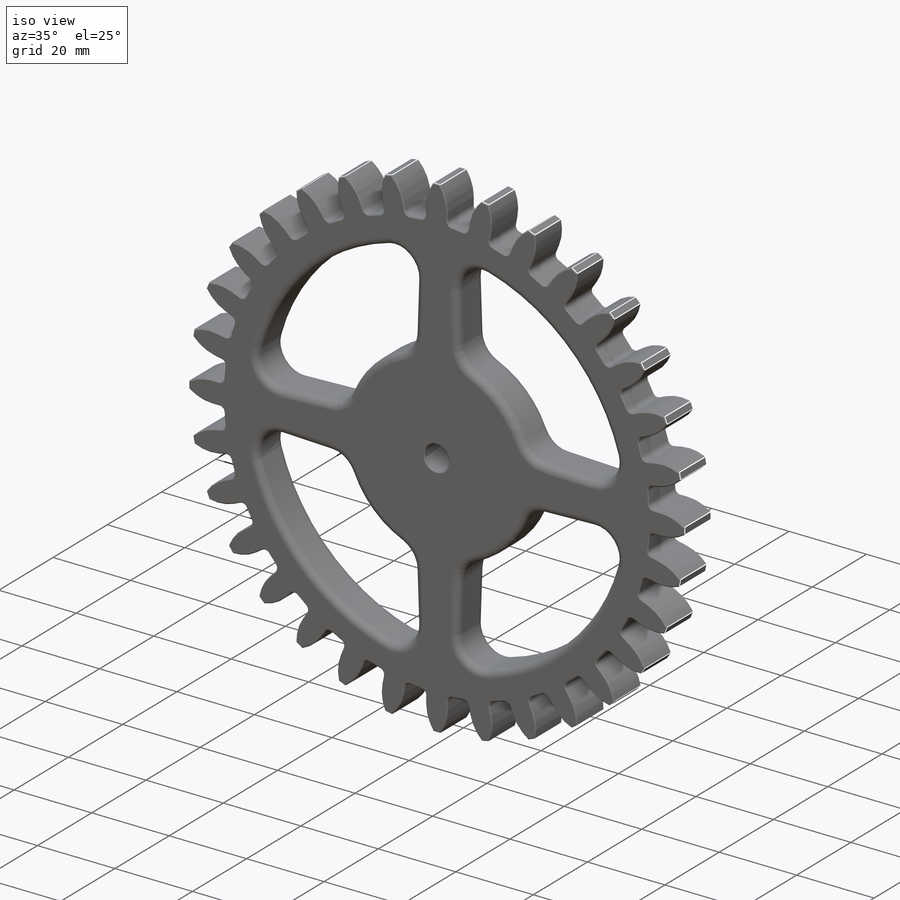
[diagram: iso view]
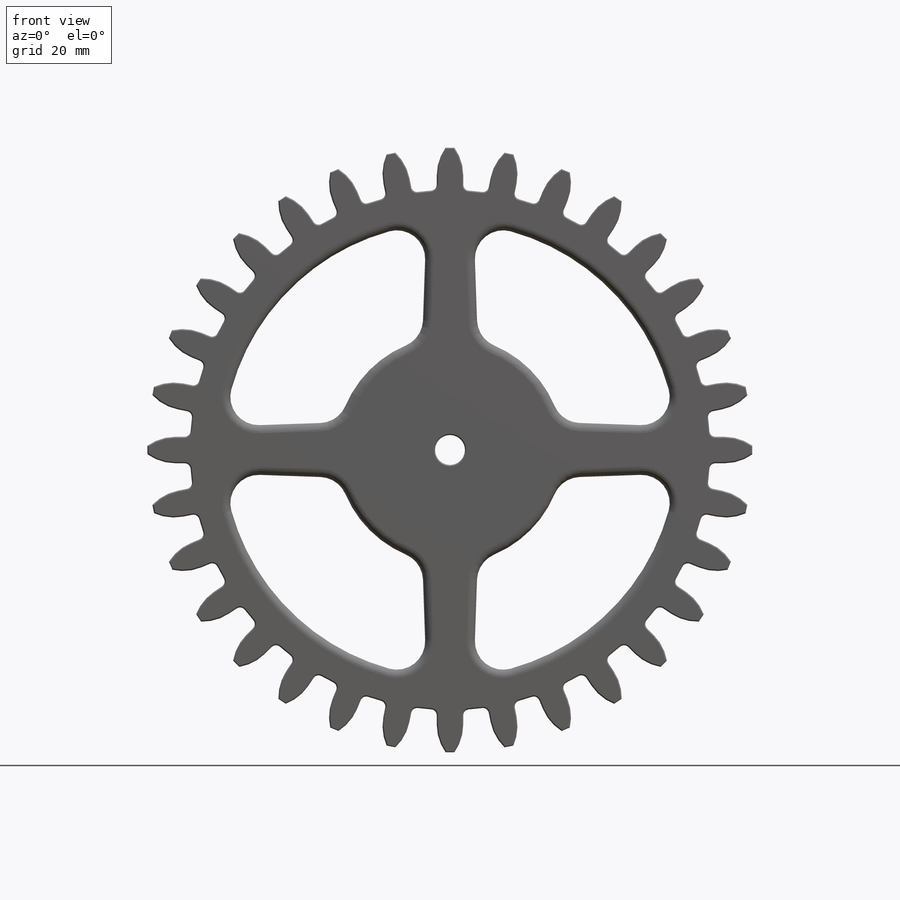
[diagram: front view]
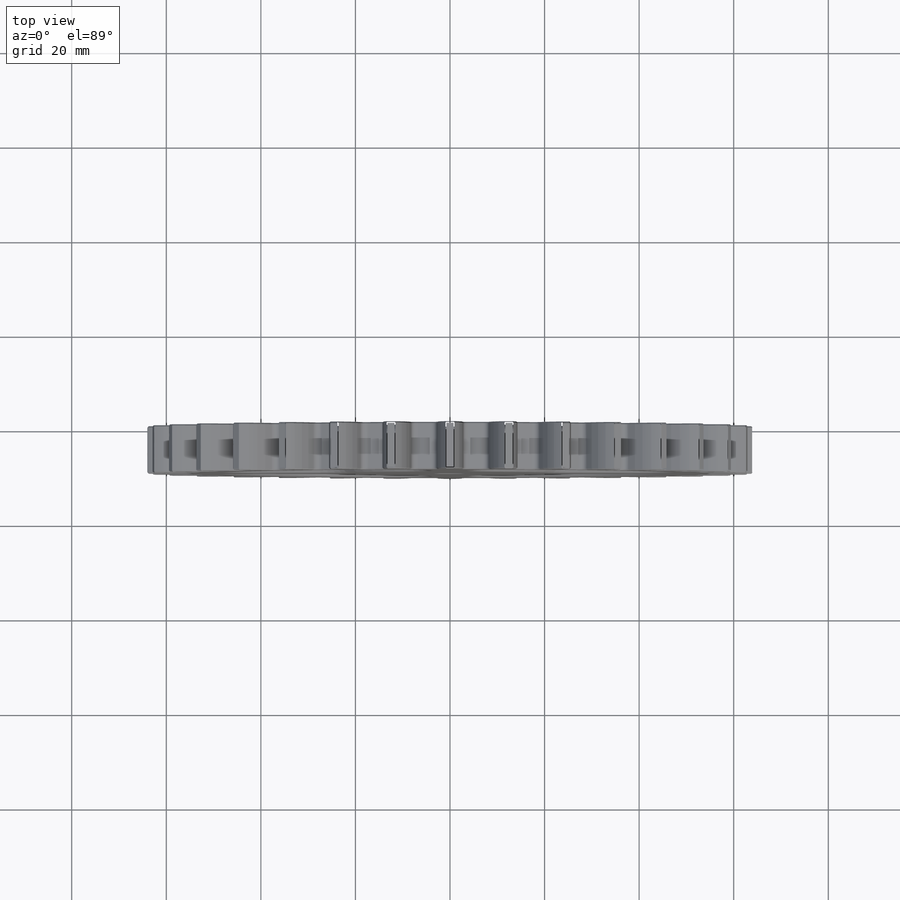
[diagram: top view]
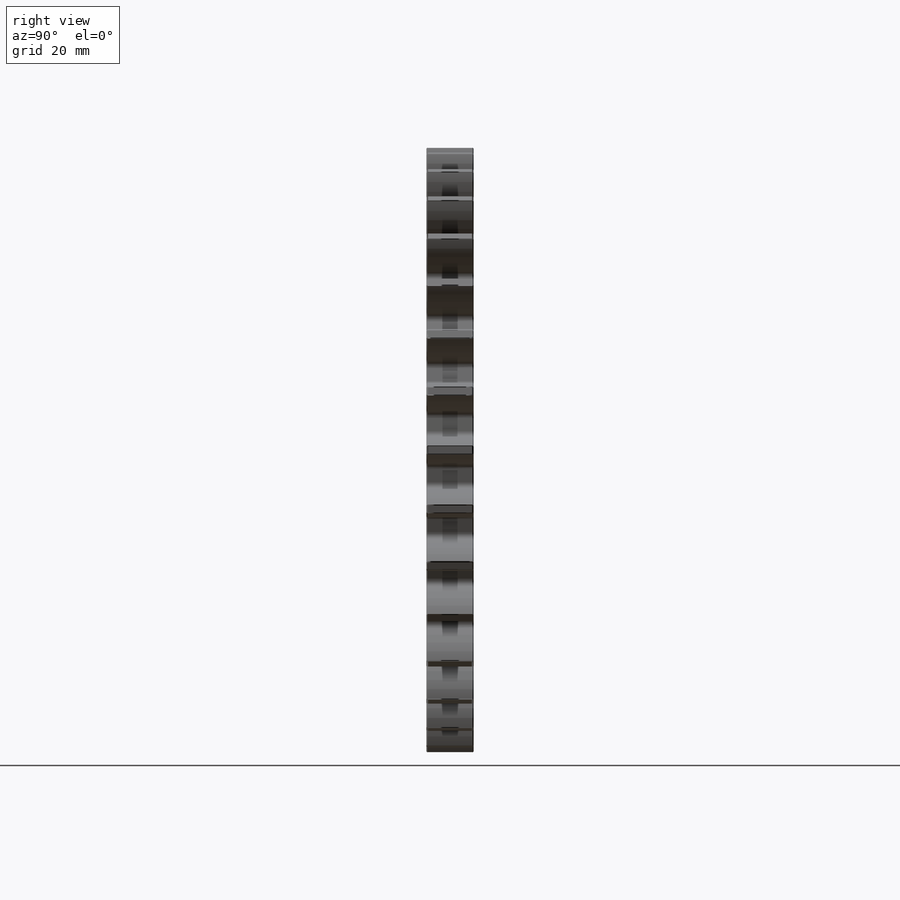
[diagram: right view]
SOLIDWORKS PART (.sldprt)
format: sldprt  version: not decoded by parser v0  size: 1,876,480 bytes
history: native  units: mm
features: plane x3, chamfer x2, material x1, sketch x1, extrude x1, fillet x1 (+13 scaffold rows collapsed)
feature tree (22):
  scaffold x13  (default folders/planes/origin — collapsed)
  material  "Дуб"
  plane  "Спереди"
  plane  "Сверху"
  plane  "Справа"
  sketch  "Эскиз1"  dims[c1.D1=6.35mm c1.D2=48.0mm c1.D3=128.0mm c1.D4=110.0mm c1.D5=117.11mm c1.D6=20.0mm c1.D8=1.27mm c1.D10=96.0mm c1.D14=6.0mm c1.D7=5.6mm c1.D11=~25.157722mm c2.D11=2.0deg c2.D12=~25.190352mm c3.D12=2.0deg c3.D13=5.0mm c3.D9=32.0 c3.D15=4.0]
  extrude  "Бобышка-Вытянуть1"  Depth=10mm
  fillet  "Скругление1"  Radius=1.75mm
  chamfer  "Фаска1"  Distance=0.25mm Angle=45deg
  chamfer  "Скругление2"  Distance=0.25mm
decode coverage: 5 of 5 modeling features carry decoded parameters
note: ~ marks probable driven/reference dimensions
note: suppression state not decoded; provenance and decode notes live in map.json
